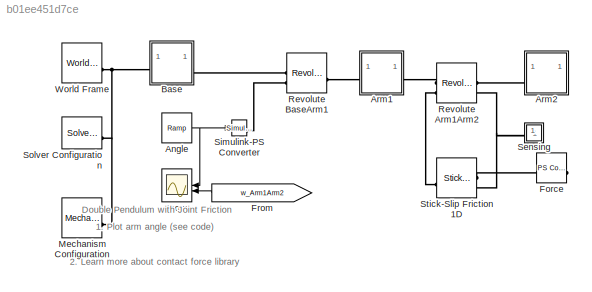
MODEL slx_b01ee451d7ce
KIND model
CONFIG AbsTol = 1e-4
CONFIG EnableMultiTasking = on
CONFIG FixedStep = auto
CONFIG MaxStep = 1e-2
CONFIG MinStep = auto
CONFIG RelTol = 1e-3
CONFIG SampleTimeConstraint = Unconstrained
CONFIG SolverName = ode23t
CONFIG StartFcn = tic;
CONFIG StartTime = 0.0
CONFIG StopFcn = Elapsed_Sim_Time = toc;\ndisp(['Elapsed Sim Time = ' num2str(Elapsed_Sim_Time)]);\n
CONFIG StopTime = 45
BLOCK [Reference] Angle  REF=simulink/Sources/Ramp
  SourceBlock = simulink/Sources/Ramp
  SourceType = Ramp
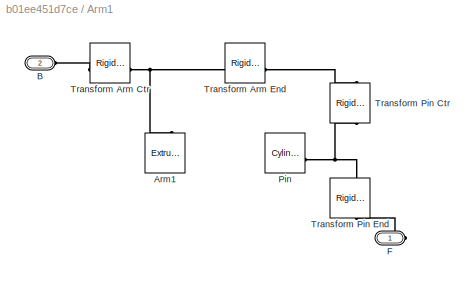
BLOCK [SubSystem] Arm1
  Tag = CustomStyle
BLOCK [Reference] Arm1/Arm1  REF=sm_lib/Body Elements/Extruded Solid
  NameLocation = right
  SourceBlock = sm_lib/Body Elements/Extruded Solid
  SourceType = Extruded Solid
BLOCK [PMIOPort] Arm1/B
  Port = 2
  Side = Left
BLOCK [PMIOPort] Arm1/F
  Side = Right
BLOCK [Reference] Arm1/Pin  REF=sm_lib/Body Elements/Cylindrical Solid
  SourceBlock = sm_lib/Body Elements/Cylindrical Solid
  SourceType = Cylindrical Solid
BLOCK [Reference] Arm1/Transform Arm Ctr  REF=sm_lib/Frames and
Transforms/Rigid
Transform
  SourceBlock = sm_lib/Frames and\nTransforms/Rigid\nTransform
  SourceType = Rigid\nTransform
BLOCK [Reference] Arm1/Transform Arm End  REF=sm_lib/Frames and
Transforms/Rigid
Transform
  SourceBlock = sm_lib/Frames and\nTransforms/Rigid\nTransform
  SourceType = Rigid\nTransform
BLOCK [Reference] Arm1/Transform Pin Ctr  REF=sm_lib/Frames and
Transforms/Rigid
Transform
  NameLocation = right
  SourceBlock = sm_lib/Frames and\nTransforms/Rigid\nTransform
  SourceType = Rigid\nTransform
BLOCK [Reference] Arm1/Transform Pin End  REF=sm_lib/Frames and
Transforms/Rigid
Transform
  NameLocation = right
  SourceBlock = sm_lib/Frames and\nTransforms/Rigid\nTransform
  SourceType = Rigid\nTransform
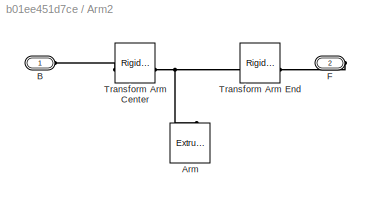
BLOCK [SubSystem] Arm2
  Tag = CustomStyle
BLOCK [Reference] Arm2/Arm  REF=sm_lib/Body Elements/Extruded Solid
  NameLocation = right
  SourceBlock = sm_lib/Body Elements/Extruded Solid
  SourceType = Extruded Solid
BLOCK [PMIOPort] Arm2/B
  Side = Left
BLOCK [PMIOPort] Arm2/F
  NameLocation = top
  Port = 2
  Side = Right
BLOCK [Reference] Arm2/Transform Arm Center  REF=sm_lib/Frames and
Transforms/Rigid
Transform
  SourceBlock = sm_lib/Frames and\nTransforms/Rigid\nTransform
  SourceType = Rigid\nTransform
BLOCK [Reference] Arm2/Transform Arm End  REF=sm_lib/Frames and
Transforms/Rigid
Transform
  SourceBlock = sm_lib/Frames and\nTransforms/Rigid\nTransform
  SourceType = Rigid\nTransform
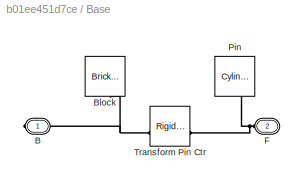
BLOCK [SubSystem] Base
  Tag = CustomStyle
BLOCK [PMIOPort] Base/B
  Side = Right
BLOCK [Reference] Base/Block  REF=sm_lib/Body Elements/Brick Solid
  NameLocation = left
  SourceBlock = sm_lib/Body Elements/Brick Solid
  SourceType = Brick Solid
BLOCK [PMIOPort] Base/F
  NameLocation = top
  Port = 2
  Side = Left
BLOCK [Reference] Base/Pin  REF=sm_lib/Body Elements/Cylindrical Solid
  NameLocation = left
  SourceBlock = sm_lib/Body Elements/Cylindrical Solid
  SourceType = Cylindrical Solid
BLOCK [Reference] Base/Transform Pin Ctr  REF=sm_lib/Frames and
Transforms/Rigid
Transform
  SourceBlock = sm_lib/Frames and\nTransforms/Rigid\nTransform
  SourceType = Rigid\nTransform
BLOCK [Reference] Force  REF=fl_lib/Physical Signals/Sources/PS Constant
  SourceBlock = fl_lib/Physical Signals/Sources/PS Constant
  SourceType = PS Constant
BLOCK [From] From
  GotoTag = w_Arm1Arm2
  NameLocation = top
  TagVisibility = global
BLOCK [Reference] Mechanism Configuration  REF=sm_lib/Utilities/Mechanism
Configuration
  SourceBlock = sm_lib/Utilities/Mechanism\nConfiguration
  SourceType = Mechanism\nConfiguration
BLOCK [Reference] Revolute Arm1Arm2  REF=sm_lib/Joints/Revolute Joint
  SourceBlock = sm_lib/Joints/Revolute Joint
  SourceType = Revolute Joint
BLOCK [Reference] Revolute BaseArm1  REF=sm_lib/Joints/Revolute Joint
  SourceBlock = sm_lib/Joints/Revolute Joint
  SourceType = Revolute Joint
BLOCK [Scope] Scope
  Floating = off
  NumInputPorts = 2
  ScopeSpecificationString = Simulink.scopes.TimeScopeBlockCfg('CurrentConfiguration', extmgr.ConfigurationSet(extmgr.Configuration('Core','General UI',true,'FigureColor',[0.501960784313725 0.501960784313725 0.501960784313725]),extmgr.Configuration('Core','Source UI',true),extmgr.Configuration('Sources','WiredSimulink',true,'DataLoggingSaveFormat','StructureWithTime','DataLoggingDecimation','1'),extmgr.Configuration('Visuals'...<+3809ch>
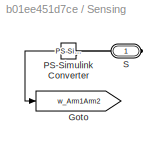
BLOCK [SubSystem] Sensing
  NameLocation = top
BLOCK [Goto] Sensing/Goto
  GotoTag = w_Arm1Arm2
  TagVisibility = global
BLOCK [Reference] Sensing/PS-Simulink Converter  REF=nesl_utility/PS-Simulink
Converter
  NameLocation = top
  SourceBlock = nesl_utility/PS-Simulink\nConverter
  SourceType = PS-Simulink\nConverter
BLOCK [PMIOPort] Sensing/S
  Side = Right
BLOCK [Reference] Simulink-PS Converter  REF=nesl_utility/Simulink-PS
Converter
  SourceBlock = nesl_utility/Simulink-PS\nConverter
  SourceType = Simulink-PS\nConverter
BLOCK [Reference] Solver Configuration  REF=nesl_utility/Solver
Configuration
  SourceBlock = nesl_utility/Solver\nConfiguration
  SourceType = Solver\nConfiguration
BLOCK [Reference] Stick-Slip Friction 1D  REF=Contact_Forces_Lib/Friction Utilities/Stick-Slip
Friction 1D
  SourceBlock = Contact_Forces_Lib/Friction Utilities/Stick-Slip\nFriction 1D
  SourceProductName = Simscape Multibody Contact Forces Library
  SourceType = Stick-Slip Friction
BLOCK [Reference] World Frame  REF=sm_lib/Frames and
Transforms/World Frame
  SourceBlock = sm_lib/Frames and\nTransforms/World Frame
  SourceType = World Frame
ANNOTATION (root): 1. Plot arm angle ( see code ) 2. Learn more about contact force library
ANNOTATION (root): Double Pendulum with Joint Friction
NET Angle:1 -> Scope:1, Simulink-PS Converter:1
LINE From:1 -> Scope:2
LINE Sensing/PS-Simulink Converter:1 -> Sensing/Goto:1
PNET net1: Arm1/Arm1:RConn1 -- Arm1/Transform Arm Ctr:RConn1 -- Arm1/Transform Arm End:LConn1
PLINE Arm1/B:RConn1 -- Arm1/Transform Arm Ctr:LConn1
PLINE Arm1/F:RConn1 -- Arm1/Transform Pin End:RConn1
PNET net2: Arm1/Pin:RConn1 -- Arm1/Transform Pin Ctr:RConn1 -- Arm1/Transform Pin End:LConn1
PLINE Arm1/Transform Arm End:RConn1 -- Arm1/Transform Pin Ctr:LConn1
PLINE Arm1:LConn1 -- Revolute BaseArm1:RConn1
PLINE Arm1:RConn1 -- Revolute Arm1Arm2:LConn1
PNET net3: Arm2/Arm:RConn1 -- Arm2/Transform Arm Center:RConn1 -- Arm2/Transform Arm End:LConn1
PLINE Arm2/B:RConn1 -- Arm2/Transform Arm Center:LConn1
PLINE Arm2/F:RConn1 -- Arm2/Transform Arm End:RConn1
PLINE Arm2:LConn1 -- Revolute Arm1Arm2:RConn1
PNET net4: Base/B:RConn1 -- Base/Block:RConn1 -- Base/Transform Pin Ctr:LConn1
PNET net5: Base/F:RConn1 -- Base/Pin:RConn1 -- Base/Transform Pin Ctr:RConn1
PLINE Base:LConn1 -- Revolute BaseArm1:LConn1
PNET net6: Base:RConn1 -- Mechanism Configuration:RConn1 -- Solver Configuration:RConn1 -- World Frame:RConn1
PLINE Force:RConn1 -- Stick-Slip Friction 1D:LConn1
PLINE Revolute Arm1Arm2:LConn2 -- Stick-Slip Friction 1D:RConn1
PNET net7: Revolute Arm1Arm2:RConn2 -- Sensing:RConn1 -- Stick-Slip Friction 1D:LConn2
PLINE Revolute BaseArm1:LConn2 -- Simulink-PS Converter:RConn1
PLINE Sensing/PS-Simulink Converter:LConn1 -- Sensing/S:RConn1
note: NET lines group one-source signal fan-out (src -> all destinations, sorted); 1:1 wires keep LINE; PNET lines group multi-terminal physical nets as a canonical sorted terminal list (undirected conserving connections); 2-terminal nets keep the pairwise PLINE form
